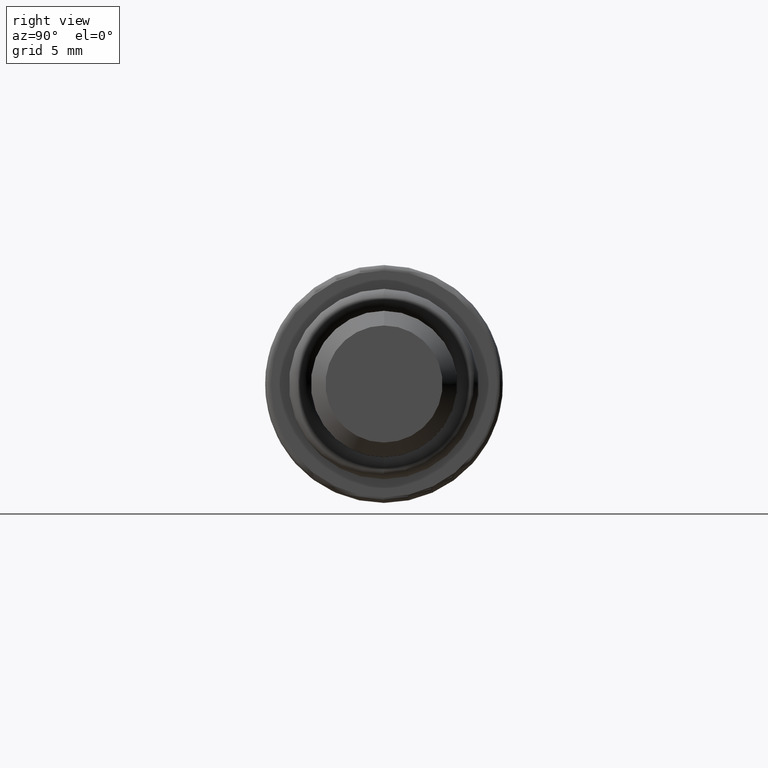
[diagram: clean part render]
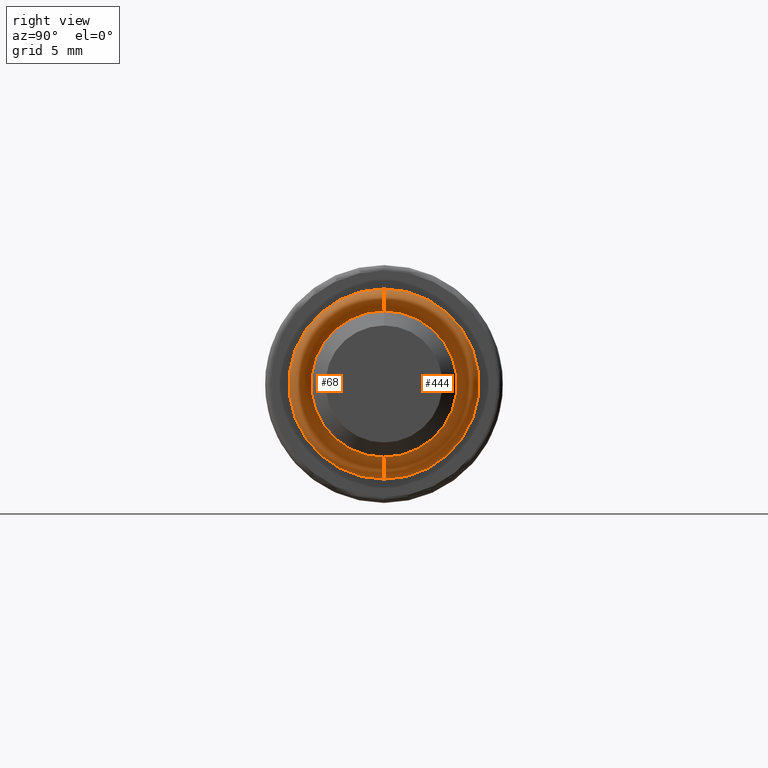
[diagram: same view with one multi-face feature highlighted, each face labeled with its STEP entity id]
A machine part, right view. The highlighted faces form ONE feature: a constant-radius fillet chain: 2 tangent blend faces with common blend radius 0.6 mm. The faces share edges in the B-rep.
Their STEP definitions:
[1] entity #444 (Torus):
#30 = CIRCLE ( 'NONE', #730, 4.000000000000000000 ) ;
#35 = CIRCLE ( 'NONE', #755, 0.5999999999999998700 ) ;
#79 = CARTESIAN_POINT ( 'NONE',  ( -0.2000000000000000700, 0.0000000000000000000, 0.0000000000000000000 ) ) ;
#113 = VERTEX_POINT ( 'NONE', #279 ) ;
#116 = AXIS2_PLACEMENT_3D ( 'NONE', #686, #365, #738 ) ;
#118 = CARTESIAN_POINT ( 'NONE',  ( -0.1999999999999999800, 0.0000000000000000000, -4.599999999999999600 ) ) ;
#120 = EDGE_CURVE ( 'NONE', #344, #113, #155, .T. ) ;
#130 = FACE_OUTER_BOUND ( 'NONE', #453, .T. ) ;
#140 = DIRECTION ( 'NONE',  ( 0.0000000000000000000, 0.0000000000000000000, -1.000000000000000000 ) ) ;
#155 = CIRCLE ( 'NONE', #401, 0.5999999999999998700 ) ;
#195 = EDGE_CURVE ( 'NONE', #113, #463, #30, .T. ) ;
#213 = ORIENTED_EDGE ( 'NONE', *, *, #400, .T. ) ;
#279 = CARTESIAN_POINT ( 'NONE',  ( -0.2000000000000000700, 0.0000000000000000000, -4.000000000000000000 ) ) ;
#281 = AXIS2_PLACEMENT_3D ( 'NONE', #669, #547, #618 ) ;
#297 = CARTESIAN_POINT ( 'NONE',  ( -0.1999999999999999800, 5.633375276077824100E-016, 4.599999999999999600 ) ) ;
#309 = CARTESIAN_POINT ( 'NONE',  ( -0.1999999999999999800, 0.0000000000000000000, -5.200000000000000200 ) ) ;
#325 = EDGE_CURVE ( 'NONE', #798, #463, #35, .T. ) ;
#326 = CARTESIAN_POINT ( 'NONE',  ( -0.1999999999999999800, 6.368163355566236400E-016, 5.200000000000000200 ) ) ;
#344 = VERTEX_POINT ( 'NONE', #309 ) ;
#365 = DIRECTION ( 'NONE',  ( 1.000000000000000000, -0.0000000000000000000, -0.0000000000000000000 ) ) ;
#371 = ORIENTED_EDGE ( 'NONE', *, *, #325, .T. ) ;
#397 = ORIENTED_EDGE ( 'NONE', *, *, #120, .F. ) ;
#400 = EDGE_CURVE ( 'NONE', #344, #798, #496, .T. ) ;
#401 = AXIS2_PLACEMENT_3D ( 'NONE', #118, #589, #576 ) ;
#434 = ORIENTED_EDGE ( 'NONE', *, *, #195, .F. ) ;
#444 = ADVANCED_FACE ( 'NONE', ( #130 ), #596, .T. ) ;
#453 = EDGE_LOOP ( 'NONE', ( #397, #213, #371, #434 ) ) ;
#463 = VERTEX_POINT ( 'NONE', #499 ) ;
#496 = CIRCLE ( 'NONE', #116, 5.200000000000000200 ) ;
#499 = CARTESIAN_POINT ( 'NONE',  ( -0.2000000000000000700, 4.898587196589412800E-016, 4.000000000000000000 ) ) ;
#503 = DIRECTION ( 'NONE',  ( 0.0000000000000000000, 1.000000000000000000, -1.224646799147353200E-016 ) ) ;
#507 = DIRECTION ( 'NONE',  ( 1.000000000000000000, -0.0000000000000000000, -0.0000000000000000000 ) ) ;
#547 = DIRECTION ( 'NONE',  ( 1.000000000000000000, -0.0000000000000000000, -0.0000000000000000000 ) ) ;
#576 = DIRECTION ( 'NONE',  ( 0.0000000000000000000, 0.0000000000000000000, -1.000000000000000000 ) ) ;
#589 = DIRECTION ( 'NONE',  ( -0.0000000000000000000, -1.000000000000000000, -0.0000000000000000000 ) ) ;
#596 = TOROIDAL_SURFACE ( 'NONE', #281, 4.599999999999999600, 0.5999999999999999800 ) ;
#618 = DIRECTION ( 'NONE',  ( 0.0000000000000000000, 0.0000000000000000000, -1.000000000000000000 ) ) ;
#619 = DIRECTION ( 'NONE',  ( 0.0000000000000000000, 1.224646799147353200E-016, 1.000000000000000000 ) ) ;
#669 = CARTESIAN_POINT ( 'NONE',  ( -0.1999999999999999800, 0.0000000000000000000, 0.0000000000000000000 ) ) ;
#686 = CARTESIAN_POINT ( 'NONE',  ( -0.1999999999999999800, 0.0000000000000000000, 0.0000000000000000000 ) ) ;
#730 = AXIS2_PLACEMENT_3D ( 'NONE', #79, #507, #140 ) ;
#738 = DIRECTION ( 'NONE',  ( 0.0000000000000000000, 0.0000000000000000000, -1.000000000000000000 ) ) ;
#755 = AXIS2_PLACEMENT_3D ( 'NONE', #297, #503, #619 ) ;
#798 = VERTEX_POINT ( 'NONE', #326 ) ;
[2] entity #68 (Torus):
#12 = CIRCLE ( 'NONE', #425, 4.000000000000000000 ) ;
#26 = AXIS2_PLACEMENT_3D ( 'NONE', #377, #282, #163 ) ;
#35 = CIRCLE ( 'NONE', #755, 0.5999999999999998700 ) ;
#60 = EDGE_LOOP ( 'NONE', ( #443, #780, #370, #581 ) ) ;
#68 = ADVANCED_FACE ( 'NONE', ( #765 ), #539, .T. ) ;
#105 = DIRECTION ( 'NONE',  ( 1.000000000000000000, -0.0000000000000000000, -0.0000000000000000000 ) ) ;
#113 = VERTEX_POINT ( 'NONE', #279 ) ;
#115 = CARTESIAN_POINT ( 'NONE',  ( -0.1999999999999999800, 0.0000000000000000000, 0.0000000000000000000 ) ) ;
#118 = CARTESIAN_POINT ( 'NONE',  ( -0.1999999999999999800, 0.0000000000000000000, -4.599999999999999600 ) ) ;
#120 = EDGE_CURVE ( 'NONE', #344, #113, #155, .T. ) ;
#124 = DIRECTION ( 'NONE',  ( 1.000000000000000000, -0.0000000000000000000, -0.0000000000000000000 ) ) ;
#155 = CIRCLE ( 'NONE', #401, 0.5999999999999998700 ) ;
#163 = DIRECTION ( 'NONE',  ( 0.0000000000000000000, 0.0000000000000000000, -1.000000000000000000 ) ) ;
#254 = EDGE_CURVE ( 'NONE', #463, #113, #12, .T. ) ;
#279 = CARTESIAN_POINT ( 'NONE',  ( -0.2000000000000000700, 0.0000000000000000000, -4.000000000000000000 ) ) ;
#282 = DIRECTION ( 'NONE',  ( 1.000000000000000000, -0.0000000000000000000, -0.0000000000000000000 ) ) ;
#297 = CARTESIAN_POINT ( 'NONE',  ( -0.1999999999999999800, 5.633375276077824100E-016, 4.599999999999999600 ) ) ;
#309 = CARTESIAN_POINT ( 'NONE',  ( -0.1999999999999999800, 0.0000000000000000000, -5.200000000000000200 ) ) ;
#325 = EDGE_CURVE ( 'NONE', #798, #463, #35, .T. ) ;
#326 = CARTESIAN_POINT ( 'NONE',  ( -0.1999999999999999800, 6.368163355566236400E-016, 5.200000000000000200 ) ) ;
#329 = CIRCLE ( 'NONE', #26, 5.200000000000000200 ) ;
#344 = VERTEX_POINT ( 'NONE', #309 ) ;
#352 = DIRECTION ( 'NONE',  ( 0.0000000000000000000, 0.0000000000000000000, -1.000000000000000000 ) ) ;
#362 = EDGE_CURVE ( 'NONE', #798, #344, #329, .T. ) ;
#370 = ORIENTED_EDGE ( 'NONE', *, *, #120, .T. ) ;
#377 = CARTESIAN_POINT ( 'NONE',  ( -0.1999999999999999800, 0.0000000000000000000, 0.0000000000000000000 ) ) ;
#401 = AXIS2_PLACEMENT_3D ( 'NONE', #118, #589, #576 ) ;
#425 = AXIS2_PLACEMENT_3D ( 'NONE', #478, #124, #531 ) ;
#443 = ORIENTED_EDGE ( 'NONE', *, *, #325, .F. ) ;
#463 = VERTEX_POINT ( 'NONE', #499 ) ;
#478 = CARTESIAN_POINT ( 'NONE',  ( -0.2000000000000000700, 0.0000000000000000000, 0.0000000000000000000 ) ) ;
#499 = CARTESIAN_POINT ( 'NONE',  ( -0.2000000000000000700, 4.898587196589412800E-016, 4.000000000000000000 ) ) ;
#503 = DIRECTION ( 'NONE',  ( 0.0000000000000000000, 1.000000000000000000, -1.224646799147353200E-016 ) ) ;
#531 = DIRECTION ( 'NONE',  ( 0.0000000000000000000, 0.0000000000000000000, -1.000000000000000000 ) ) ;
#539 = TOROIDAL_SURFACE ( 'NONE', #624, 4.599999999999999600, 0.5999999999999999800 ) ;
#576 = DIRECTION ( 'NONE',  ( 0.0000000000000000000, 0.0000000000000000000, -1.000000000000000000 ) ) ;
#581 = ORIENTED_EDGE ( 'NONE', *, *, #254, .F. ) ;
#589 = DIRECTION ( 'NONE',  ( -0.0000000000000000000, -1.000000000000000000, -0.0000000000000000000 ) ) ;
#619 = DIRECTION ( 'NONE',  ( 0.0000000000000000000, 1.224646799147353200E-016, 1.000000000000000000 ) ) ;
#624 = AXIS2_PLACEMENT_3D ( 'NONE', #115, #105, #352 ) ;
#755 = AXIS2_PLACEMENT_3D ( 'NONE', #297, #503, #619 ) ;
#765 = FACE_OUTER_BOUND ( 'NONE', #60, .T. ) ;
#780 = ORIENTED_EDGE ( 'NONE', *, *, #362, .T. ) ;
#798 = VERTEX_POINT ( 'NONE', #326 ) ;